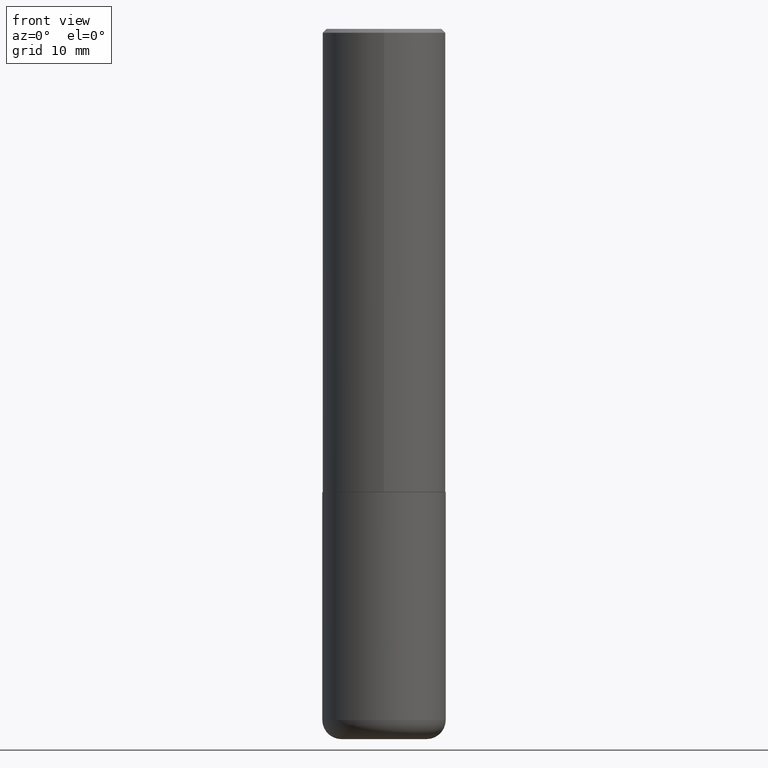
[diagram: clean part render]
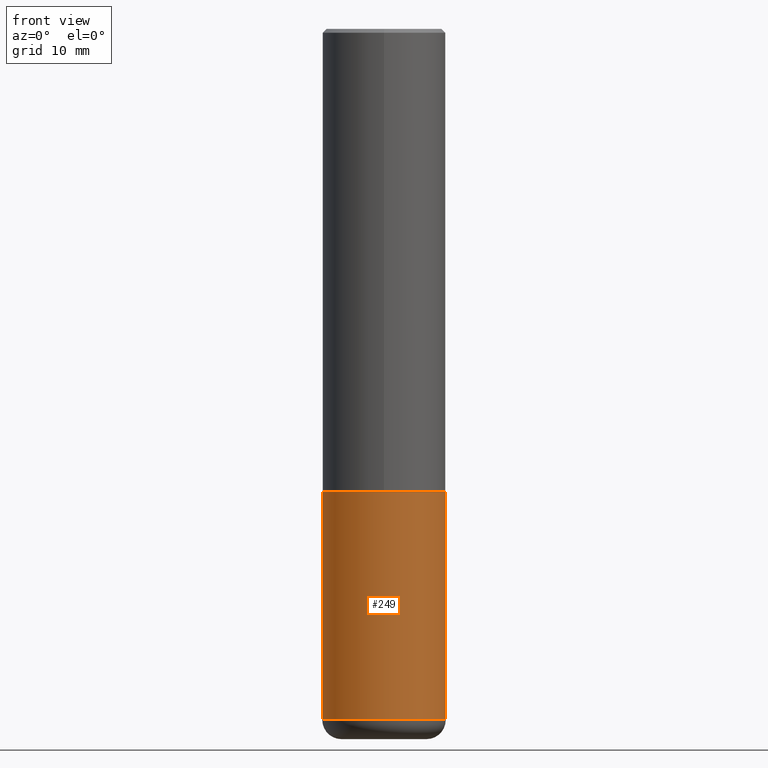
[diagram: same view with one face highlighted and labeled with its STEP entity id]
A machine part, front view. The second image highlights one B-rep face of the part: STEP entity #249.
In plain terms, the highlighted cylindrical surface (partial cylindrical patch) has radius 7.9997 mm, axis along (-0, 0, 1).
Its self-contained STEP definition (entity closure, byte-faithful):
#10 = DIRECTION ( 'NONE',  ( -2.445468806185136597E-29, 3.491481338843145583E-15, 1.000000000000000000 ) ) ;
#12 = CARTESIAN_POINT ( 'NONE',  ( 8.616853885473946211E-29, -1.230258364554770589E-14, -3.523599999999999621 ) ) ;
#13 = DIRECTION ( 'NONE',  ( 1.000000000000000000, -6.982962677686269866E-15, 0.000000000000000000 ) ) ;
#28 = VERTEX_POINT ( 'NONE', #358 ) ;
#51 = EDGE_CURVE ( 'NONE', #260, #91, #61, .T. ) ;
#60 = ORIENTED_EDGE ( 'NONE', *, *, #170, .F. ) ;
#61 = CIRCLE ( 'NONE', #272, 0.3149500000000000077 ) ;
#82 = CARTESIAN_POINT ( 'NONE',  ( 0.000000000000000000, 0.000000000000000000, 0.000000000000000000 ) ) ;
#86 = LINE ( 'NONE', #206, #237 ) ;
#89 = DIRECTION ( 'NONE',  ( -2.445468806185136597E-29, 3.491481338843145583E-15, 1.000000000000000000 ) ) ;
#91 = VERTEX_POINT ( 'NONE', #221 ) ;
#124 = ORIENTED_EDGE ( 'NONE', *, *, #51, .T. ) ;
#140 = FACE_OUTER_BOUND ( 'NONE', #359, .T. ) ;
#151 = CARTESIAN_POINT ( 'NONE',  ( 5.776686413970529753E-29, -8.247577218615278049E-15, -2.362199999999999633 ) ) ;
#170 = EDGE_CURVE ( 'NONE', #260, #28, #271, .T. ) ;
#197 = CARTESIAN_POINT ( 'NONE',  ( -0.3149500000000000077, 2.237854346276435590E-15, -1.549218606675782676E-29 ) ) ;
#203 = DIRECTION ( 'NONE',  ( -2.445468806185136877E-29, 3.491481338843145188E-15, 1.000000000000000000 ) ) ;
#206 = CARTESIAN_POINT ( 'NONE',  ( 0.3149500000000000077, -2.199284095337289871E-15, 1.535751875536930130E-29 ) ) ;
#208 = VERTEX_POINT ( 'NONE', #405 ) ;
#219 = ORIENTED_EDGE ( 'NONE', *, *, #258, .T. ) ;
#221 = CARTESIAN_POINT ( 'NONE',  ( 0.3149499999999999522, -1.450186774088499734E-14, -3.523599999999999621 ) ) ;
#237 = VECTOR ( 'NONE', #203, 39.37007874015748143 ) ;
#242 = DIRECTION ( 'NONE',  ( -2.445468806185136877E-29, 3.491481338843145188E-15, 1.000000000000000000 ) ) ;
#249 = ADVANCED_FACE ( 'NONE', ( #140 ), #283, .T. ) ;
#250 = DIRECTION ( 'NONE',  ( 1.000000000000000000, -6.982962677686266711E-15, 0.000000000000000000 ) ) ;
#256 = VECTOR ( 'NONE', #242, 39.37007874015748143 ) ;
#258 = EDGE_CURVE ( 'NONE', #91, #208, #86, .T. ) ;
#260 = VERTEX_POINT ( 'NONE', #341 ) ;
#271 = LINE ( 'NONE', #197, #256 ) ;
#272 = AXIS2_PLACEMENT_3D ( 'NONE', #12, #10, #13 ) ;
#283 = CYLINDRICAL_SURFACE ( 'NONE', #406, 0.3149500000000000077 ) ;
#296 = AXIS2_PLACEMENT_3D ( 'NONE', #151, #89, #250 ) ;
#306 = DIRECTION ( 'NONE',  ( 1.000000000000000000, -6.982962677686266711E-15, 4.876176775795936353E-29 ) ) ;
#308 = DIRECTION ( 'NONE',  ( -2.445468806185136597E-29, 3.491481338843145583E-15, 1.000000000000000000 ) ) ;
#320 = ORIENTED_EDGE ( 'NONE', *, *, #328, .F. ) ;
#328 = EDGE_CURVE ( 'NONE', #28, #208, #389, .T. ) ;
#341 = CARTESIAN_POINT ( 'NONE',  ( -0.3149499999999999522, -1.006472929927126990E-14, -3.523599999999999621 ) ) ;
#358 = CARTESIAN_POINT ( 'NONE',  ( -0.3149500000000000077, -8.037226085805055984E-15, -2.362199999999999633 ) ) ;
#359 = EDGE_LOOP ( 'NONE', ( #60, #124, #219, #320 ) ) ;
#389 = CIRCLE ( 'NONE', #296, 0.3149500000000000077 ) ;
#405 = CARTESIAN_POINT ( 'NONE',  ( 0.3149500000000000077, -1.044686131395256792E-14, -2.362199999999999633 ) ) ;
#406 = AXIS2_PLACEMENT_3D ( 'NONE', #82, #308, #306 ) ;